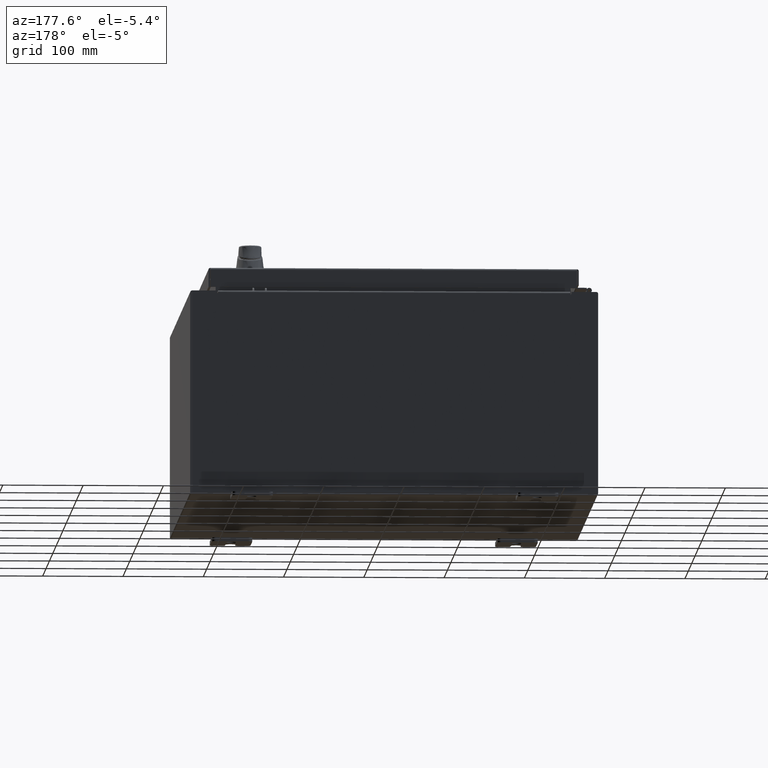
[diagram: clean part render]
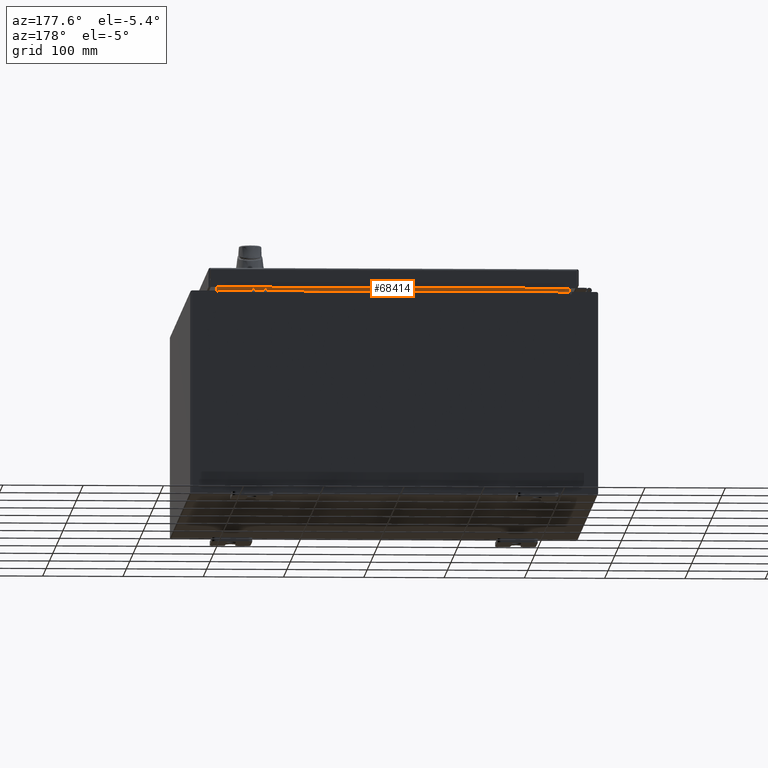
[diagram: same view with one face highlighted and labeled with its STEP entity id]
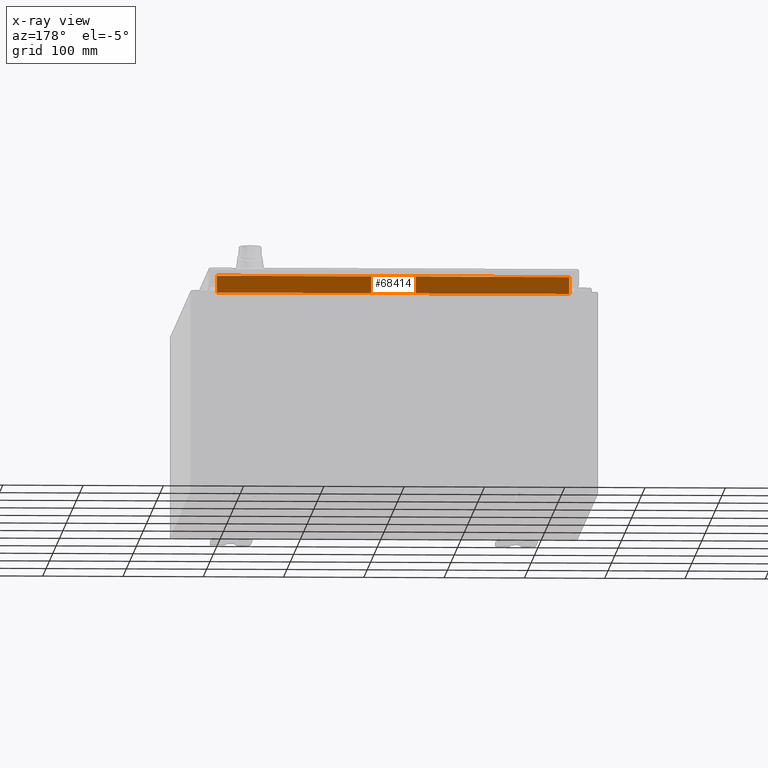
[diagram: x-ray of the same camera — body ghosted, the highlighted face saturated]
A machine part, auxiliary view. The second image highlights one B-rep face of the part: STEP entity #68414.
The next image is the same camera in x-ray: the body ghosted, the highlighted face saturated — about 0% of this face is hidden behind the body in this view.
In plain terms, the highlighted planar face has unit normal (0, 1, 0).
Its self-contained STEP definition (entity closure, byte-faithful):
#8493 = DIRECTION ( 'NONE',  ( 0.0000000000000000000, -0.0000000000000000000, 1.000000000000000000 ) ) ;
#12275 = ORIENTED_EDGE ( 'NONE', *, *, #26698, .F. ) ;
#14850 = VECTOR ( 'NONE', #50891, 39.37007874015748100 ) ;
#20283 = FACE_OUTER_BOUND ( 'NONE', #90301, .T. ) ;
#20532 = VERTEX_POINT ( 'NONE', #55374 ) ;
#25900 = CARTESIAN_POINT ( 'NONE',  ( -8.637200000000000000, -1.300299999999999800, 5.013000000000003500 ) ) ;
#26330 = CARTESIAN_POINT ( 'NONE',  ( 8.637200000000000000, -1.300299999999999800, 5.925300000000004500 ) ) ;
#26698 = EDGE_CURVE ( 'NONE', #62260, #64393, #91967, .T. ) ;
#34887 = ORIENTED_EDGE ( 'NONE', *, *, #68093, .F. ) ;
#37406 = LINE ( 'NONE', #43752, #104641 ) ;
#41865 = CARTESIAN_POINT ( 'NONE',  ( 8.637199999999996400, -1.300299999999999800, 5.013000000000003500 ) ) ;
#42142 = CARTESIAN_POINT ( 'NONE',  ( -8.637200000000000000, -1.300299999999999800, 5.000000000000004400 ) ) ;
#42758 = EDGE_CURVE ( 'NONE', #103004, #20532, #37406, .T. ) ;
#43569 = LINE ( 'NONE', #42142, #14850 ) ;
#43752 = CARTESIAN_POINT ( 'NONE',  ( 8.637200000000000000, -1.300299999999999800, 5.837600000000004600 ) ) ;
#50891 = DIRECTION ( 'NONE',  ( -0.0000000000000000000, -0.0000000000000000000, -1.000000000000000000 ) ) ;
#54984 = AXIS2_PLACEMENT_3D ( 'NONE', #69264, #60849, #8493 ) ;
#55374 = CARTESIAN_POINT ( 'NONE',  ( -8.637200000000000000, -1.300299999999999800, 5.837600000000004600 ) ) ;
#60849 = DIRECTION ( 'NONE',  ( 0.0000000000000000000, 1.000000000000000000, 0.0000000000000000000 ) ) ;
#61162 = VECTOR ( 'NONE', #87609, 39.37007874015748100 ) ;
#62260 = VERTEX_POINT ( 'NONE', #25900 ) ;
#64393 = VERTEX_POINT ( 'NONE', #41865 ) ;
#68093 = EDGE_CURVE ( 'NONE', #64393, #103004, #107891, .T. ) ;
#68414 = ADVANCED_FACE ( 'NONE', ( #20283 ), #113483, .T. ) ;
#69264 = CARTESIAN_POINT ( 'NONE',  ( 0.0000000000000000000, -1.300299999999999800, 0.0000000000000000000 ) ) ;
#78153 = CARTESIAN_POINT ( 'NONE',  ( -8.637200000000000000, -1.300299999999999800, 5.013000000000003500 ) ) ;
#82873 = CARTESIAN_POINT ( 'NONE',  ( 8.637200000000000000, -1.300299999999999800, 5.837600000000004600 ) ) ;
#87029 = DIRECTION ( 'NONE',  ( 1.000000000000000000, 0.0000000000000000000, 0.0000000000000000000 ) ) ;
#87452 = DIRECTION ( 'NONE',  ( -1.000000000000000000, -0.0000000000000000000, -0.0000000000000000000 ) ) ;
#87609 = DIRECTION ( 'NONE',  ( -0.0000000000000000000, -0.0000000000000000000, 1.000000000000000000 ) ) ;
#89255 = VECTOR ( 'NONE', #87029, 39.37007874015748100 ) ;
#90301 = EDGE_LOOP ( 'NONE', ( #112633, #94589, #34887, #12275 ) ) ;
#91967 = LINE ( 'NONE', #78153, #89255 ) ;
#94589 = ORIENTED_EDGE ( 'NONE', *, *, #42758, .F. ) ;
#102079 = EDGE_CURVE ( 'NONE', #20532, #62260, #43569, .T. ) ;
#103004 = VERTEX_POINT ( 'NONE', #82873 ) ;
#104641 = VECTOR ( 'NONE', #87452, 39.37007874015748100 ) ;
#107891 = LINE ( 'NONE', #26330, #61162 ) ;
#112633 = ORIENTED_EDGE ( 'NONE', *, *, #102079, .F. ) ;
#113483 = PLANE ( 'NONE',  #54984 ) ;